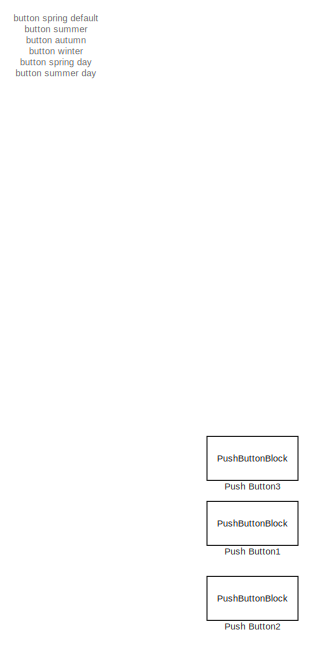
[diagram: root canvas - part 1/2, left side, full height]
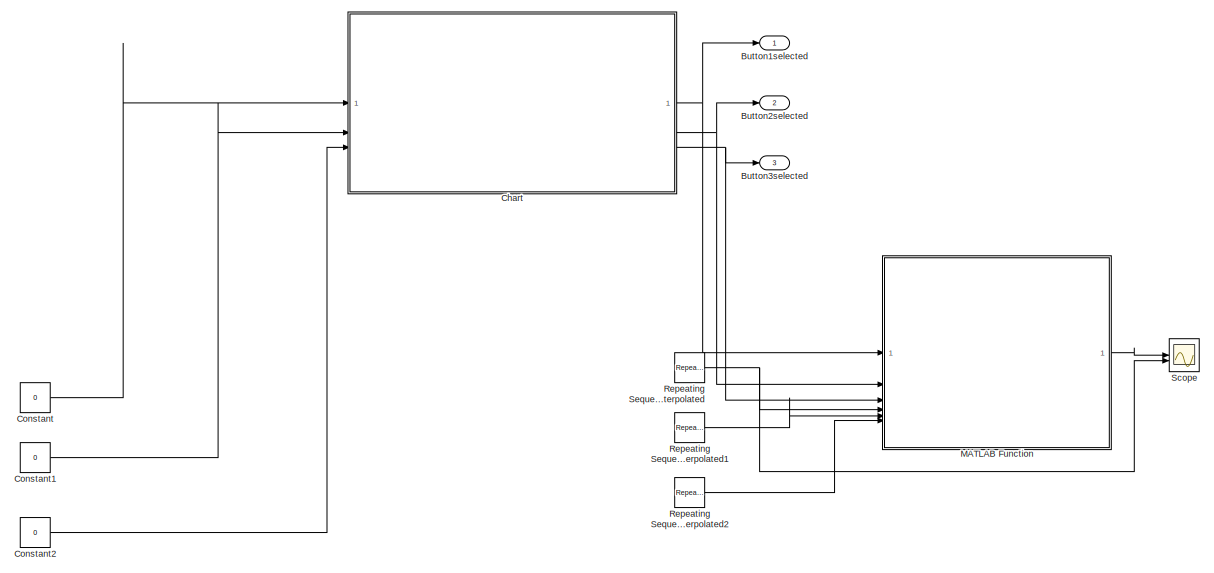
[diagram: root canvas - part 2/2, most of the canvas]
MODEL slx_8d12bffc5a4f
KIND model
CONFIG AbsTol = auto
CONFIG EnableMultiTasking = off
CONFIG FixedStep = 0.01
CONFIG MaxStep = auto
CONFIG MinStep = auto
CONFIG RelTol = 1e-3
CONFIG SampleTimeConstraint = Unconstrained
CONFIG SolverName = FixedStepAuto
CONFIG StartTime = 0.0
CONFIG StopTime = 100
BLOCK [Outport]  Button1selected
BLOCK [Outport]  Button2selected
  Port = 2
BLOCK [Outport]  Button3selected
  Port = 3
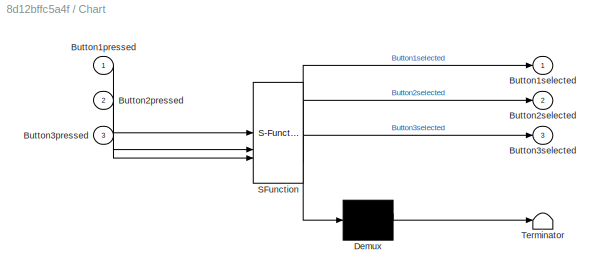
BLOCK [SubSystem] Chart
  ErrorFcn = Stateflow.Translate.translate
  PermitHierarchicalResolution = ExplicitOnly
  SFBlockType = Chart
  TreatAsAtomicUnit = on
BLOCK [Outport] Chart/ Button1selected
BLOCK [Outport] Chart/ Button2selected
  Port = 2
BLOCK [Outport] Chart/ Button3selected
  Port = 3
BLOCK [Demux] Chart/ Demux 
  Outputs = 1
BLOCK [S-Function] Chart/ SFunction 
  EnableBusSupport = on
  FunctionName = sf_sfun
  PortCounts = [3 4]
  SFcnIsStateOwnerBlock = off
  SFunctionDeploymentMode = off
  Tag = Stateflow S-Function 3
BLOCK [Terminator] Chart/ Terminator 
BLOCK [Inport] Chart/Button1pressed
BLOCK [Inport] Chart/Button2pressed
  Port = 2
BLOCK [Inport] Chart/Button3pressed
  Port = 3
BLOCK [Constant] Constant
  OutDataTypeStr = boolean
  Value = 0
BLOCK [Constant] Constant1
  OutDataTypeStr = boolean
  Value = 0
BLOCK [Constant] Constant2
  OutDataTypeStr = boolean
  Value = 0
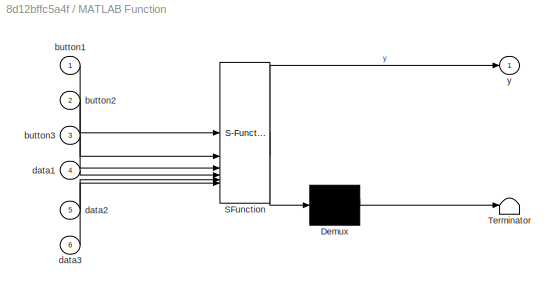
BLOCK [SubSystem] MATLAB Function
  ErrorFcn = Stateflow.Translate.translate
  LibrarySourceBlock = simulink/User-Defined\nFunctions/MATLAB Function
  PermitHierarchicalResolution = ExplicitOnly
  SFBlockType = MATLAB Function
  TreatAsAtomicUnit = on
BLOCK [Demux] MATLAB Function/ Demux 
  Outputs = 1
BLOCK [S-Function] MATLAB Function/ SFunction 
  EnableBusSupport = on
  FunctionName = sf_sfun
  PortCounts = [6 2]
  SFcnIsStateOwnerBlock = off
  SFunctionDeploymentMode = off
  Tag = Stateflow S-Function 2
BLOCK [Terminator] MATLAB Function/ Terminator 
BLOCK [Inport] MATLAB Function/button1
BLOCK [Inport] MATLAB Function/button2
  Port = 2
BLOCK [Inport] MATLAB Function/button3
  Port = 3
BLOCK [Inport] MATLAB Function/data1
  Port = 4
BLOCK [Inport] MATLAB Function/data2
  Port = 5
BLOCK [Inport] MATLAB Function/data3
  Port = 6
BLOCK [Outport] MATLAB Function/y
BLOCK [PushButtonBlock] Push Button1
  ButtonText = Button2
  OffValue = 0.000000
BLOCK [PushButtonBlock] Push Button2
  ButtonText = Button3
  OffValue = 0.000000
BLOCK [PushButtonBlock] Push Button3
  ButtonText = Button1
  OffValue = 0.000000
BLOCK [Reference] Repeating Sequence Interpolated  REF=simulink/Sources/Repeating
Sequence
Interpolated
  SourceBlock = simulink/Sources/Repeating\nSequence\nInterpolated
  SourceType = Repeating Sequence Interpolated
BLOCK [Reference] Repeating Sequence Interpolated1  REF=simulink/Sources/Repeating
Sequence
Interpolated
  SourceBlock = simulink/Sources/Repeating\nSequence\nInterpolated
  SourceType = Repeating Sequence Interpolated
BLOCK [Reference] Repeating Sequence Interpolated2  REF=simulink/Sources/Repeating
Sequence
Interpolated
  SourceBlock = simulink/Sources/Repeating\nSequence\nInterpolated
  SourceType = Repeating Sequence Interpolated
BLOCK [Scope] Scope
  Floating = off
  NumInputPorts = 2
  ScopeSpecificationString = Simulink.scopes.TimeScopeBlockCfg('CurrentConfiguration', extmgr.ConfigurationSet(extmgr.Configuration('Core','General UI',true),extmgr.Configuration('Core','Source UI',true),extmgr.Configuration('Sources','WiredSimulink',true),extmgr.Configuration('Visuals','Time Domain',true,'SerializedDisplays',{struct('MinYLimReal','0.5','MaxYLimReal','5.5','YLabelReal','','MinYLimMag','0.5','MaxYLimMag','5.5'...<+1450ch>
ANNOTATION (root): button spring default button summer button autumn button winter button spring day button summer day button autumn day button winter day button spring night button summer night button autumn night button winter night
NET Chart:1 ->  Button1selected:1, MATLAB Function:1
NET Chart:2 ->  Button2selected:1, MATLAB Function:2
NET Chart:3 ->  Button3selected:1, MATLAB Function:3
LINE Constant1:1 -> Chart:2
LINE Constant2:1 -> Chart:3
LINE Constant:1 -> Chart:1
LINE MATLAB Function:1 -> Scope:1
LINE Repeating Sequence Interpolated1:1 -> MATLAB Function:5
LINE Repeating Sequence Interpolated2:1 -> MATLAB Function:6
NET Repeating Sequence Interpolated:1 -> MATLAB Function:4, Scope:2
note: NET lines group one-source signal fan-out (src -> all destinations, sorted); 1:1 wires keep LINE
CHART MATLAB Function states=1 transitions=1
  STATE_LABEL 'eML_blk_kernel()'
  STATE_LABEL 'SCRIPT:\nfunction y = fcn(button1, button2, button3, data1,data2,data3)\n    if button1\n        y = data1;\n    elseif button2\n        y =data2;\n    elseif button3\n        y = data3;\n    else \n        y = data1;\n    end\nend\n\n'
CHART Chart states=3 transitions=10
  STATE_LABEL 'Button1selected'
  STATE_LABEL 'Button2selected'
  STATE_LABEL 'Button3selected'
CHART  states=0 transitions=0
CHART  states=0 transitions=0
